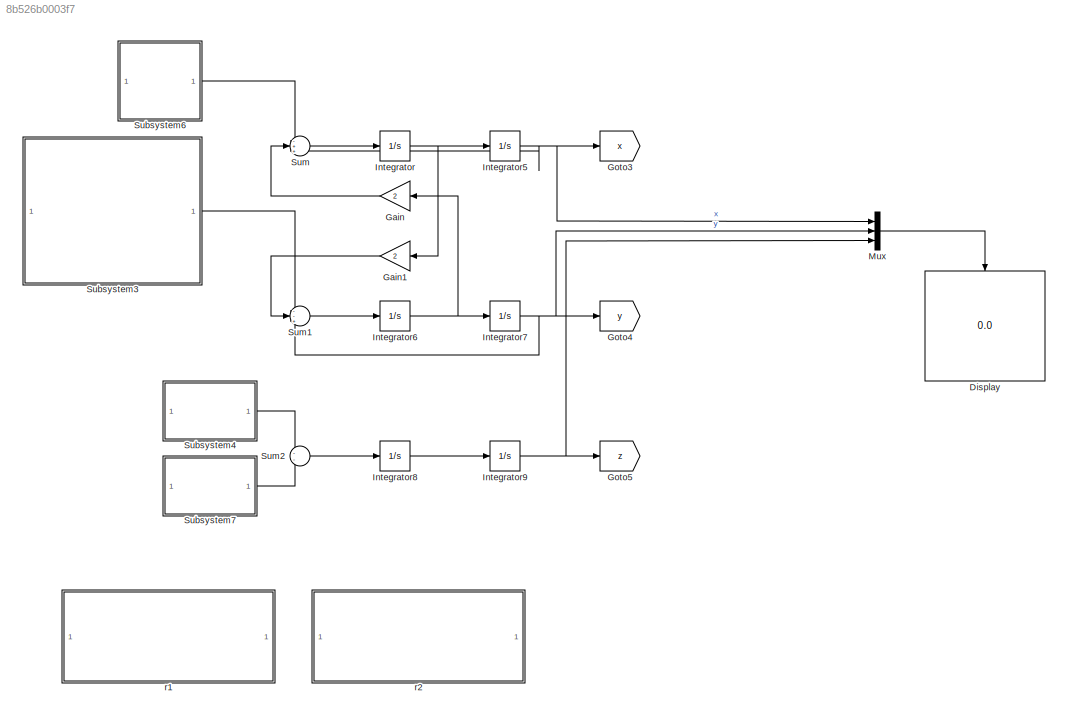
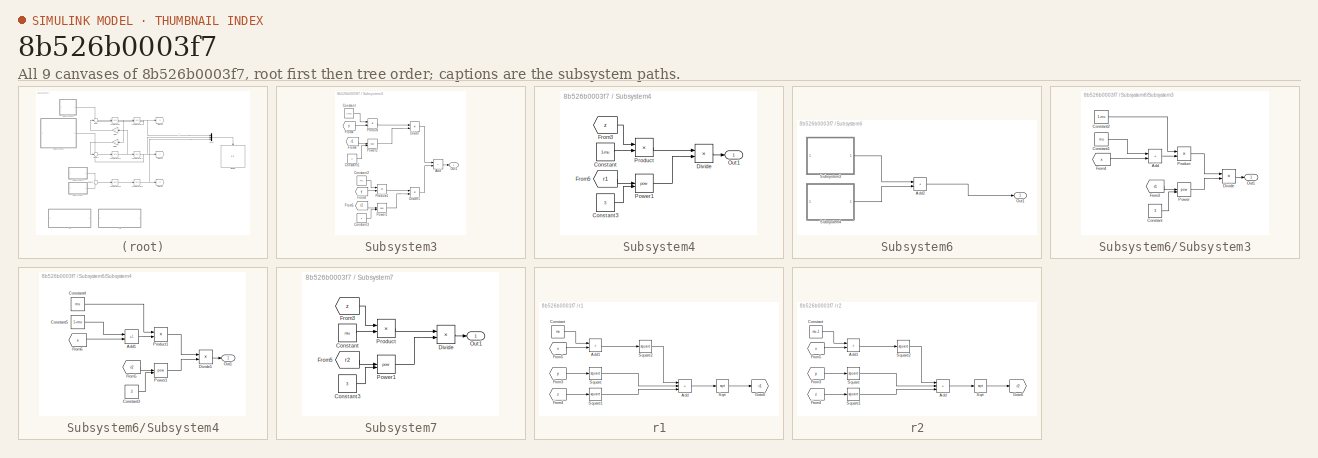
[diagram: thumbnail index - all 9 canvases of the model, root first then tree order]
MODEL slx_8b526b0003f7
KIND model
CONFIG AbsTol = auto
CONFIG EnableMultiTasking = off
CONFIG FixedStep = auto
CONFIG MaxStep = auto
CONFIG MinStep = auto
CONFIG RelTol = 1e-3
CONFIG SampleTimeConstraint = Unconstrained
CONFIG SolverName = VariableStepAuto
CONFIG StartTime = 0.0
CONFIG StopTime = 10.0
BLOCK [Display] Display
  Decimation = 1
  NameLocation = left
BLOCK [Gain] Gain
  Gain = 2
BLOCK [Gain] Gain1
  Gain = 2
BLOCK [Goto] Goto3
  GotoTag = x
  TagVisibility = global
BLOCK [Goto] Goto4
  GotoTag = y
  TagVisibility = global
BLOCK [Goto] Goto5
  GotoTag = z
  TagVisibility = global
BLOCK [Integrator] Integrator
  InitialCondition = 1
BLOCK [Integrator] Integrator5
  InitialCondition = 1
BLOCK [Integrator] Integrator6
  InitialCondition = 1
BLOCK [Integrator] Integrator7
  InitialCondition = 1
BLOCK [Integrator] Integrator8
  InitialCondition = 1
BLOCK [Integrator] Integrator9
  InitialCondition = 1
BLOCK [Mux] Mux
  DisplayOption = bar
  Inputs = 3
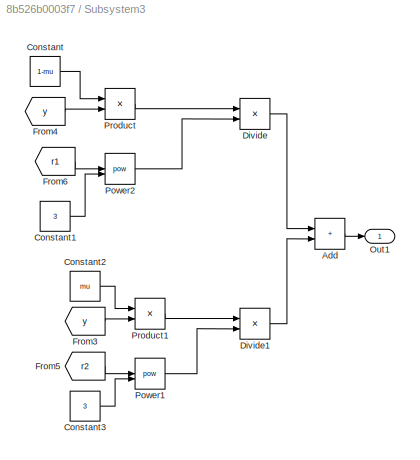
BLOCK [SubSystem] Subsystem3
BLOCK [Sum] Subsystem3/Add
  IconShape = rectangular
BLOCK [Constant] Subsystem3/Constant
  Value = 1-mu
BLOCK [Constant] Subsystem3/Constant1
  Value = 3
BLOCK [Constant] Subsystem3/Constant2
  Value = mu
BLOCK [Constant] Subsystem3/Constant3
  Value = 3
BLOCK [Product] Subsystem3/Divide
  Inputs = */
BLOCK [Product] Subsystem3/Divide1
  Inputs = */
BLOCK [From] Subsystem3/From3
  GotoTag = y
  TagVisibility = global
BLOCK [From] Subsystem3/From4
  GotoTag = y
  TagVisibility = global
BLOCK [From] Subsystem3/From5
  GotoTag = r2
  TagVisibility = global
BLOCK [From] Subsystem3/From6
  GotoTag = r1
  TagVisibility = global
BLOCK [Outport] Subsystem3/Out1
BLOCK [Math] Subsystem3/Power1
  Operator = pow
BLOCK [Math] Subsystem3/Power2
  Operator = pow
BLOCK [Product] Subsystem3/Product
BLOCK [Product] Subsystem3/Product1
BLOCK [SubSystem] Subsystem4
BLOCK [Constant] Subsystem4/Constant
  Value = 1-mu
BLOCK [Constant] Subsystem4/Constant3
  Value = 3
BLOCK [Product] Subsystem4/Divide
  Inputs = */
BLOCK [From] Subsystem4/From3
  GotoTag = z
  TagVisibility = global
BLOCK [From] Subsystem4/From5
  GotoTag = r1
  TagVisibility = global
BLOCK [Outport] Subsystem4/Out1
BLOCK [Math] Subsystem4/Power1
  Operator = pow
BLOCK [Product] Subsystem4/Product
BLOCK [SubSystem] Subsystem6
BLOCK [Sum] Subsystem6/Add2
  IconShape = rectangular
BLOCK [Outport] Subsystem6/Out1
BLOCK [SubSystem] Subsystem6/Subsystem3
BLOCK [Sum] Subsystem6/Subsystem3/Add
  IconShape = rectangular
BLOCK [Constant] Subsystem6/Subsystem3/Constant
  Value = 3
BLOCK [Constant] Subsystem6/Subsystem3/Constant1
  Value = mu
BLOCK [Constant] Subsystem6/Subsystem3/Constant2
  Value = 1-mu
BLOCK [Product] Subsystem6/Subsystem3/Divide
  Inputs = */
BLOCK [From] Subsystem6/Subsystem3/From3
  GotoTag = r1
  TagVisibility = global
BLOCK [From] Subsystem6/Subsystem3/From4
  GotoTag = x
  TagVisibility = global
BLOCK [Outport] Subsystem6/Subsystem3/Out1
BLOCK [Math] Subsystem6/Subsystem3/Power
  Operator = pow
BLOCK [Product] Subsystem6/Subsystem3/Product
BLOCK [SubSystem] Subsystem6/Subsystem4
BLOCK [Sum] Subsystem6/Subsystem4/Add1
  IconShape = rectangular
  Inputs = -+
BLOCK [Constant] Subsystem6/Subsystem4/Constant3
  Value = 3
BLOCK [Constant] Subsystem6/Subsystem4/Constant4
  Value = mu
BLOCK [Constant] Subsystem6/Subsystem4/Constant5
  Value = 1+mu
BLOCK [Product] Subsystem6/Subsystem4/Divide1
  Inputs = */
BLOCK [From] Subsystem6/Subsystem4/From5
  GotoTag = r2
  TagVisibility = global
BLOCK [From] Subsystem6/Subsystem4/From6
  GotoTag = x
  TagVisibility = global
BLOCK [Outport] Subsystem6/Subsystem4/Out1
BLOCK [Math] Subsystem6/Subsystem4/Power1
  Operator = pow
BLOCK [Product] Subsystem6/Subsystem4/Product1
BLOCK [SubSystem] Subsystem7
BLOCK [Constant] Subsystem7/Constant
  Value = mu
BLOCK [Constant] Subsystem7/Constant3
  Value = 3
BLOCK [Product] Subsystem7/Divide
  Inputs = */
BLOCK [From] Subsystem7/From3
  GotoTag = z
  TagVisibility = global
BLOCK [From] Subsystem7/From5
  GotoTag = r2
  TagVisibility = global
BLOCK [Outport] Subsystem7/Out1
BLOCK [Math] Subsystem7/Power1
  Operator = pow
BLOCK [Product] Subsystem7/Product
BLOCK [Sum] Sum
  Inputs = -++
BLOCK [Sum] Sum1
  Inputs = --+
BLOCK [Sum] Sum2
  Inputs = --
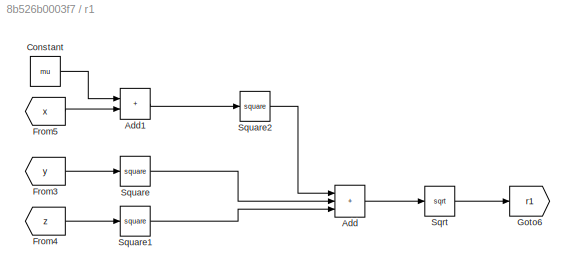
BLOCK [SubSystem] r1
BLOCK [Sum] r1/Add
  IconShape = rectangular
  Inputs = +++
BLOCK [Sum] r1/Add1
  IconShape = rectangular
BLOCK [Constant] r1/Constant
  Value = mu
BLOCK [From] r1/From3
  GotoTag = y
  TagVisibility = global
BLOCK [From] r1/From4
  GotoTag = z
  TagVisibility = global
BLOCK [From] r1/From5
  GotoTag = x
  TagVisibility = global
BLOCK [Goto] r1/Goto6
  GotoTag = r1
  TagVisibility = global
BLOCK [Sqrt] r1/Sqrt
BLOCK [Math] r1/Square
  Operator = square
BLOCK [Math] r1/Square1
  Operator = square
BLOCK [Math] r1/Square2
  Operator = square
BLOCK [SubSystem] r2
BLOCK [Sum] r2/Add
  IconShape = rectangular
  Inputs = +++
BLOCK [Sum] r2/Add1
  IconShape = rectangular
BLOCK [Constant] r2/Constant
  Value = mu-1
BLOCK [From] r2/From3
  GotoTag = y
  TagVisibility = global
BLOCK [From] r2/From4
  GotoTag = z
  TagVisibility = global
BLOCK [From] r2/From5
  GotoTag = x
  TagVisibility = global
BLOCK [Goto] r2/Goto6
  GotoTag = r2
  TagVisibility = global
BLOCK [Sqrt] r2/Sqrt
BLOCK [Math] r2/Square
  Operator = square
BLOCK [Math] r2/Square1
  Operator = square
BLOCK [Math] r2/Square2
  Operator = square
LINE Gain1:1 -> Sum1:2
LINE Gain:1 -> Sum:2
NET Integrator5:1 -> Goto3:1, Mux:1, Sum:3
NET Integrator6:1 -> Gain:1, Integrator7:1
NET Integrator7:1 -> Goto4:1, Mux:2, Sum1:3
LINE Integrator8:1 -> Integrator9:1
NET Integrator9:1 -> Goto5:1, Mux:3
NET Integrator:1 -> Gain1:1, Integrator5:1
LINE Mux:1 -> Display:1
LINE Subsystem3/Add:1 -> Subsystem3/Out1:1
LINE Subsystem3/Constant1:1 -> Subsystem3/Power2:2
LINE Subsystem3/Constant2:1 -> Subsystem3/Product1:1
LINE Subsystem3/Constant3:1 -> Subsystem3/Power1:2
LINE Subsystem3/Constant:1 -> Subsystem3/Product:1
LINE Subsystem3/Divide1:1 -> Subsystem3/Add:2
LINE Subsystem3/Divide:1 -> Subsystem3/Add:1
LINE Subsystem3/From3:1 -> Subsystem3/Product1:2
LINE Subsystem3/From4:1 -> Subsystem3/Product:2
LINE Subsystem3/From5:1 -> Subsystem3/Power1:1
LINE Subsystem3/From6:1 -> Subsystem3/Power2:1
LINE Subsystem3/Power1:1 -> Subsystem3/Divide1:2
LINE Subsystem3/Power2:1 -> Subsystem3/Divide:2
LINE Subsystem3/Product1:1 -> Subsystem3/Divide1:1
LINE Subsystem3/Product:1 -> Subsystem3/Divide:1
LINE Subsystem3:1 -> Sum1:1
LINE Subsystem4/Constant3:1 -> Subsystem4/Power1:2
LINE Subsystem4/Constant:1 -> Subsystem4/Product:2
LINE Subsystem4/Divide:1 -> Subsystem4/Out1:1
LINE Subsystem4/From3:1 -> Subsystem4/Product:1
LINE Subsystem4/From5:1 -> Subsystem4/Power1:1
LINE Subsystem4/Power1:1 -> Subsystem4/Divide:2
LINE Subsystem4/Product:1 -> Subsystem4/Divide:1
LINE Subsystem4:1 -> Sum2:1
LINE Subsystem6/Add2:1 -> Subsystem6/Out1:1
LINE Subsystem6/Subsystem3/Add:1 -> Subsystem6/Subsystem3/Product:2
LINE Subsystem6/Subsystem3/Constant1:1 -> Subsystem6/Subsystem3/Add:1
LINE Subsystem6/Subsystem3/Constant2:1 -> Subsystem6/Subsystem3/Product:1
LINE Subsystem6/Subsystem3/Constant:1 -> Subsystem6/Subsystem3/Power:2
LINE Subsystem6/Subsystem3/Divide:1 -> Subsystem6/Subsystem3/Out1:1
LINE Subsystem6/Subsystem3/From3:1 -> Subsystem6/Subsystem3/Power:1
LINE Subsystem6/Subsystem3/From4:1 -> Subsystem6/Subsystem3/Add:2
LINE Subsystem6/Subsystem3/Power:1 -> Subsystem6/Subsystem3/Divide:2
LINE Subsystem6/Subsystem3/Product:1 -> Subsystem6/Subsystem3/Divide:1
LINE Subsystem6/Subsystem3:1 -> Subsystem6/Add2:1
LINE Subsystem6/Subsystem4/Add1:1 -> Subsystem6/Subsystem4/Product1:2
LINE Subsystem6/Subsystem4/Constant3:1 -> Subsystem6/Subsystem4/Power1:2
LINE Subsystem6/Subsystem4/Constant4:1 -> Subsystem6/Subsystem4/Product1:1
LINE Subsystem6/Subsystem4/Constant5:1 -> Subsystem6/Subsystem4/Add1:1
LINE Subsystem6/Subsystem4/Divide1:1 -> Subsystem6/Subsystem4/Out1:1
LINE Subsystem6/Subsystem4/From5:1 -> Subsystem6/Subsystem4/Power1:1
LINE Subsystem6/Subsystem4/From6:1 -> Subsystem6/Subsystem4/Add1:2
LINE Subsystem6/Subsystem4/Power1:1 -> Subsystem6/Subsystem4/Divide1:2
LINE Subsystem6/Subsystem4/Product1:1 -> Subsystem6/Subsystem4/Divide1:1
LINE Subsystem6/Subsystem4:1 -> Subsystem6/Add2:2
LINE Subsystem6:1 -> Sum:1
LINE Subsystem7/Constant3:1 -> Subsystem7/Power1:2
LINE Subsystem7/Constant:1 -> Subsystem7/Product:2
LINE Subsystem7/Divide:1 -> Subsystem7/Out1:1
LINE Subsystem7/From3:1 -> Subsystem7/Product:1
LINE Subsystem7/From5:1 -> Subsystem7/Power1:1
LINE Subsystem7/Power1:1 -> Subsystem7/Divide:2
LINE Subsystem7/Product:1 -> Subsystem7/Divide:1
LINE Subsystem7:1 -> Sum2:2
LINE Sum1:1 -> Integrator6:1
LINE Sum2:1 -> Integrator8:1
LINE Sum:1 -> Integrator:1
LINE r1/Add1:1 -> r1/Square2:1
LINE r1/Add:1 -> r1/Sqrt:1
LINE r1/Constant:1 -> r1/Add1:1
LINE r1/From3:1 -> r1/Square:1
LINE r1/From4:1 -> r1/Square1:1
LINE r1/From5:1 -> r1/Add1:2
LINE r1/Sqrt:1 -> r1/Goto6:1
LINE r1/Square1:1 -> r1/Add:3
LINE r1/Square2:1 -> r1/Add:1
LINE r1/Square:1 -> r1/Add:2
LINE r2/Add1:1 -> r2/Square2:1
LINE r2/Add:1 -> r2/Sqrt:1
LINE r2/Constant:1 -> r2/Add1:1
LINE r2/From3:1 -> r2/Square:1
LINE r2/From4:1 -> r2/Square1:1
LINE r2/From5:1 -> r2/Add1:2
LINE r2/Sqrt:1 -> r2/Goto6:1
LINE r2/Square1:1 -> r2/Add:3
LINE r2/Square2:1 -> r2/Add:1
LINE r2/Square:1 -> r2/Add:2
note: NET lines group one-source signal fan-out (src -> all destinations, sorted); 1:1 wires keep LINE
